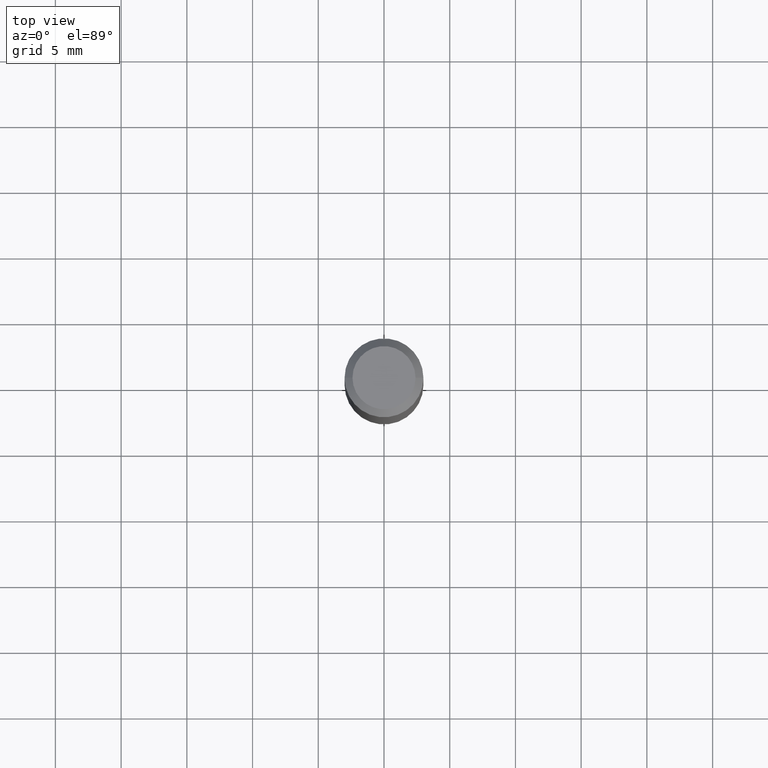
[diagram: clean part render]
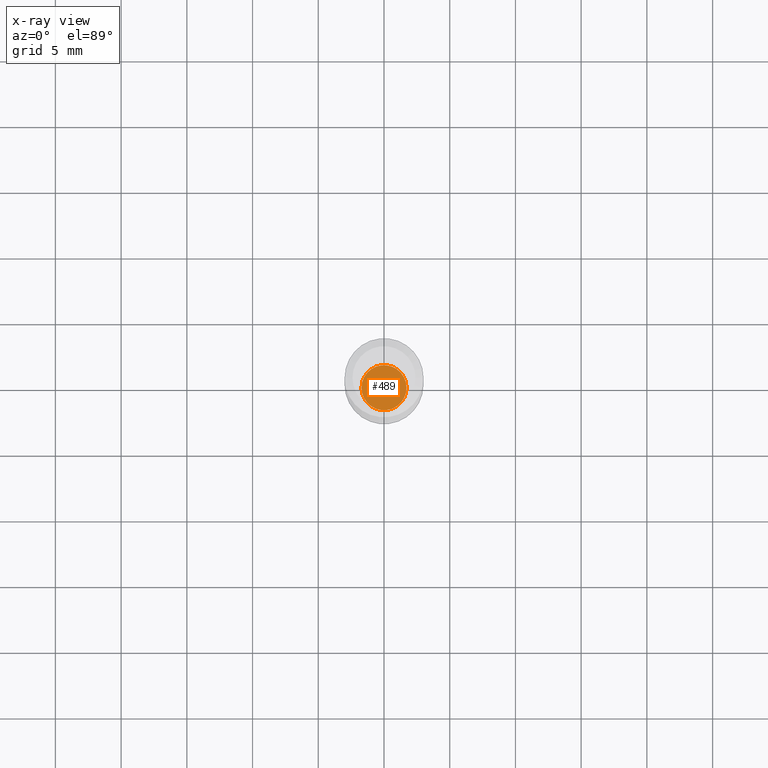
[diagram: x-ray — body ghosted, one internal face saturated and labeled with its STEP entity id]
A machine part, top view, then the same camera in x-ray: the body is ghosted and one INTERNAL B-rep face — a face not visible from any outside direction — is saturated and labeled: STEP entity #489.
In plain terms, the highlighted planar face has unit normal (-0, 0, 1).
Its self-contained STEP definition (entity closure, byte-faithful):
#4 = CARTESIAN_POINT ( 'NONE',  ( -0.06750000000000000444, -5.580342622955058549E-15, -1.736399999999999721 ) ) ;
#9 = AXIS2_PLACEMENT_3D ( 'NONE', #417, #518, #215 ) ;
#26 = CARTESIAN_POINT ( 'NONE',  ( 0.06750000000000000444, -6.533958177511060726E-15, -1.736399999999999721 ) ) ;
#39 = VERTEX_POINT ( 'NONE', #26 ) ;
#116 = DIRECTION ( 'NONE',  ( -2.445468806185136597E-29, 3.491481338843145583E-15, 1.000000000000000000 ) ) ;
#124 = EDGE_LOOP ( 'NONE', ( #167, #511 ) ) ;
#125 = CARTESIAN_POINT ( 'NONE',  ( 4.246312035059870225E-29, -6.062608196767237407E-15, -1.736399999999999721 ) ) ;
#128 = CARTESIAN_POINT ( 'NONE',  ( 4.246312035059870225E-29, -6.062608196767237407E-15, -1.736399999999999721 ) ) ;
#130 = DIRECTION ( 'NONE',  ( 1.000000000000000000, -6.982962677686268288E-15, 0.000000000000000000 ) ) ;
#132 = DIRECTION ( 'NONE',  ( -2.445468806185136597E-29, 3.491481338843145583E-15, 1.000000000000000000 ) ) ;
#147 = CIRCLE ( 'NONE', #495, 0.06750000000000000444 ) ;
#167 = ORIENTED_EDGE ( 'NONE', *, *, #226, .F. ) ;
#215 = DIRECTION ( 'NONE',  ( 1.000000000000000000, -6.982962677686265922E-15, 4.876176775795935793E-29 ) ) ;
#226 = EDGE_CURVE ( 'NONE', #39, #330, #147, .T. ) ;
#297 = CIRCLE ( 'NONE', #461, 0.06750000000000000444 ) ;
#330 = VERTEX_POINT ( 'NONE', #4 ) ;
#331 = DIRECTION ( 'NONE',  ( 1.000000000000000000, -6.982962677686268288E-15, 0.000000000000000000 ) ) ;
#365 = PLANE ( 'NONE',  #9 ) ;
#379 = FACE_OUTER_BOUND ( 'NONE', #124, .T. ) ;
#417 = CARTESIAN_POINT ( 'NONE',  ( 4.246312035059870225E-29, -6.062608196767237407E-15, -1.736399999999999721 ) ) ;
#461 = AXIS2_PLACEMENT_3D ( 'NONE', #128, #132, #130 ) ;
#471 = EDGE_CURVE ( 'NONE', #330, #39, #297, .T. ) ;
#489 = ADVANCED_FACE ( 'NONE', ( #379 ), #365, .F. ) ;
#495 = AXIS2_PLACEMENT_3D ( 'NONE', #125, #116, #331 ) ;
#511 = ORIENTED_EDGE ( 'NONE', *, *, #471, .F. ) ;
#518 = DIRECTION ( 'NONE',  ( -2.438088387897960049E-29, 3.491481338843145188E-15, 1.000000000000000000 ) ) ;